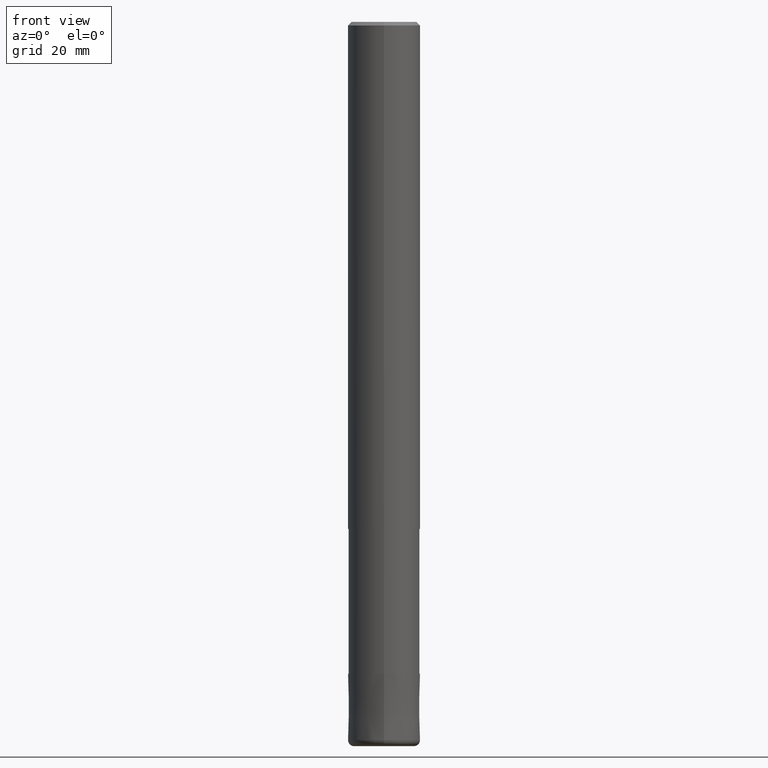
[diagram: clean part render]
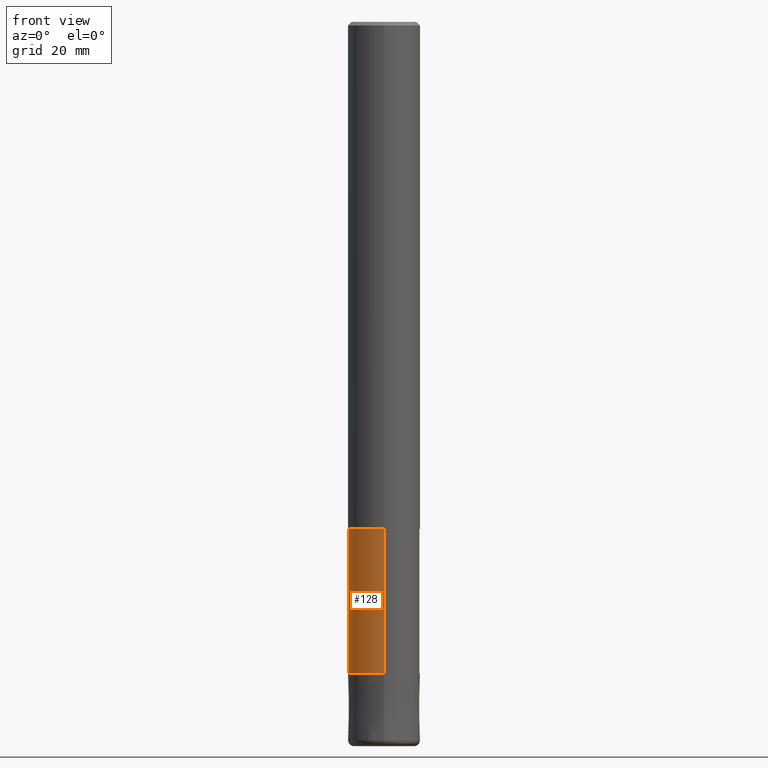
[diagram: same view with one face highlighted and labeled with its STEP entity id]
A machine part, front view. The second image highlights one B-rep face of the part: STEP entity #128.
In plain terms, the highlighted cylindrical surface (edge-blend (fillet) strip) has radius 5.91 mm, axis along (-0, -0, 1).
Its self-contained STEP definition (entity closure, byte-faithful):
#124=EDGE_CURVE('',#152,#206,#265,.T.);
#128=ADVANCED_FACE('',(#270),#271,.T.);
#152=VERTEX_POINT('',#298);
#156=EDGE_CURVE('',#190,#206,#302,.T.);
#174=EDGE_CURVE('',#152,#178,#323,.T.);
#178=VERTEX_POINT('',#327);
#188=EDGE_CURVE('',#178,#190,#339,.T.);
#190=VERTEX_POINT('',#341);
#206=VERTEX_POINT('',#358);
#265=CIRCLE('',#418,5.90995);
#270=FACE_OUTER_BOUND('',#423,.T.);
#271=CYLINDRICAL_SURFACE('',#424,5.90995);
#298=CARTESIAN_POINT('',(7.23736232077256E-016,-5.90995,-108.0));
#302=LINE('',#464,#465);
#323=LINE('',#488,#489);
#327=CARTESIAN_POINT('',(7.23736232077256E-016,-5.90995,-84.0));
#339=CIRCLE('',#510,5.90995);
#341=CARTESIAN_POINT('',(0.0,5.90995,-84.0));
#358=CARTESIAN_POINT('',(0.0,5.90995,-108.0));
#418=AXIS2_PLACEMENT_3D('',#582,#583,#584);
#423=EDGE_LOOP('',(#594,#595,#596,#597));
#424=AXIS2_PLACEMENT_3D('',#598,#599,#600);
#464=CARTESIAN_POINT('',(-7.23736232077256E-016,5.90995,-96.0));
#465=VECTOR('',#630,1.0);
#488=CARTESIAN_POINT('',(7.23736232077256E-016,-5.90995,-96.0));
#489=VECTOR('',#662,1.0);
#510=AXIS2_PLACEMENT_3D('',#686,#687,#688);
#582=CARTESIAN_POINT('',(0.0,0.0,-108.0));
#583=DIRECTION('',(0.0,0.0,-1.0));
#584=DIRECTION('',(0.0,1.0,0.0));
#594=ORIENTED_EDGE('',*,*,#156,.T.);
#595=ORIENTED_EDGE('',*,*,#124,.F.);
#596=ORIENTED_EDGE('',*,*,#174,.T.);
#597=ORIENTED_EDGE('',*,*,#188,.T.);
#598=CARTESIAN_POINT('',(0.0,0.0,-96.0));
#599=DIRECTION('',(-0.0,-0.0,1.0));
#600=DIRECTION('',(0.0,1.0,0.0));
#630=DIRECTION('',(0.0,0.0,-1.0));
#662=DIRECTION('',(-0.0,-0.0,1.0));
#686=CARTESIAN_POINT('',(0.0,0.0,-84.0));
#687=DIRECTION('',(0.0,0.0,-1.0));
#688=DIRECTION('',(0.0,1.0,0.0));